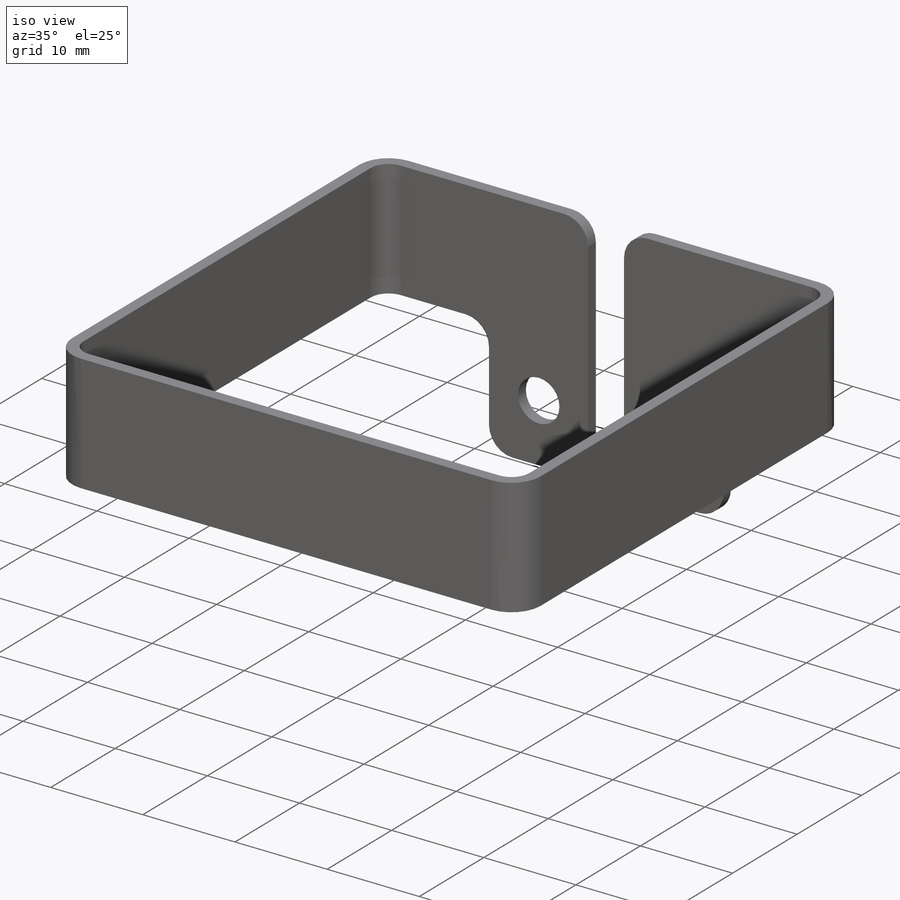
[diagram: iso view]
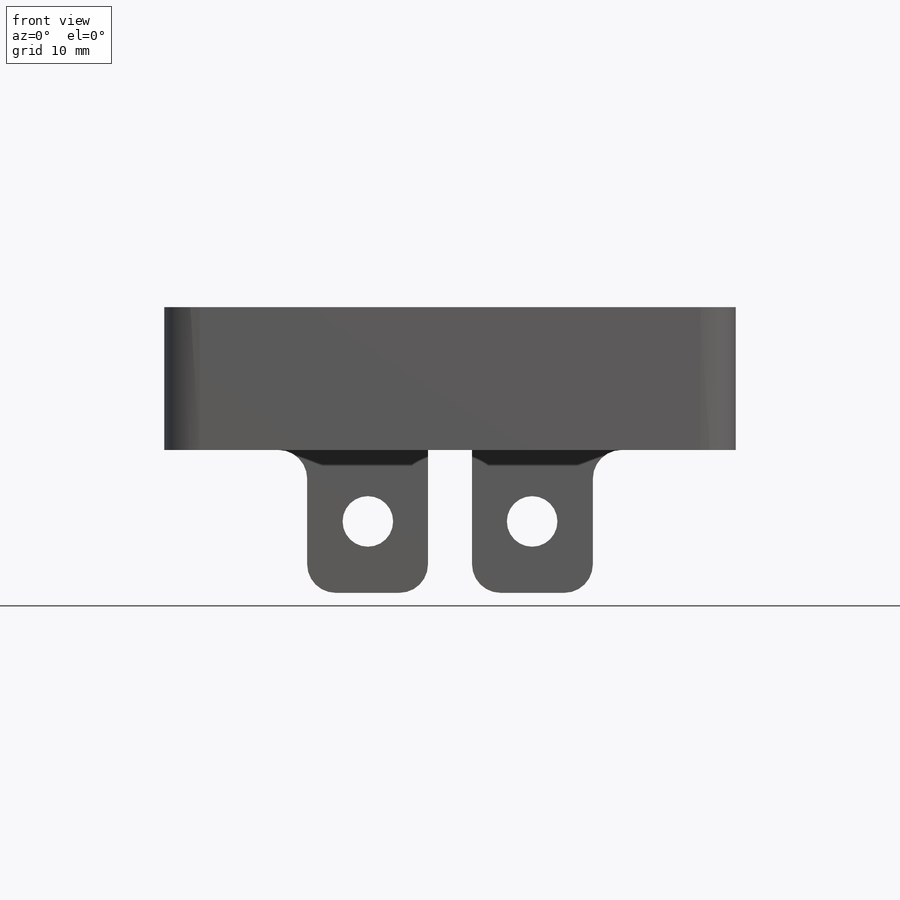
[diagram: front view]
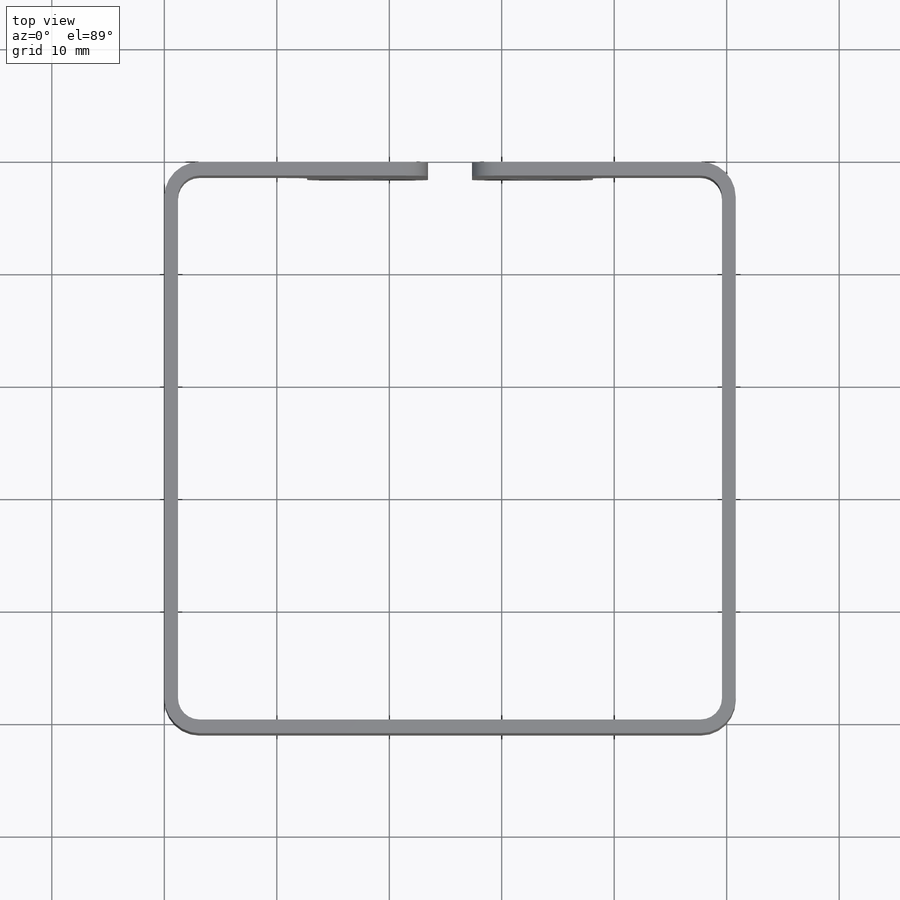
[diagram: top view]
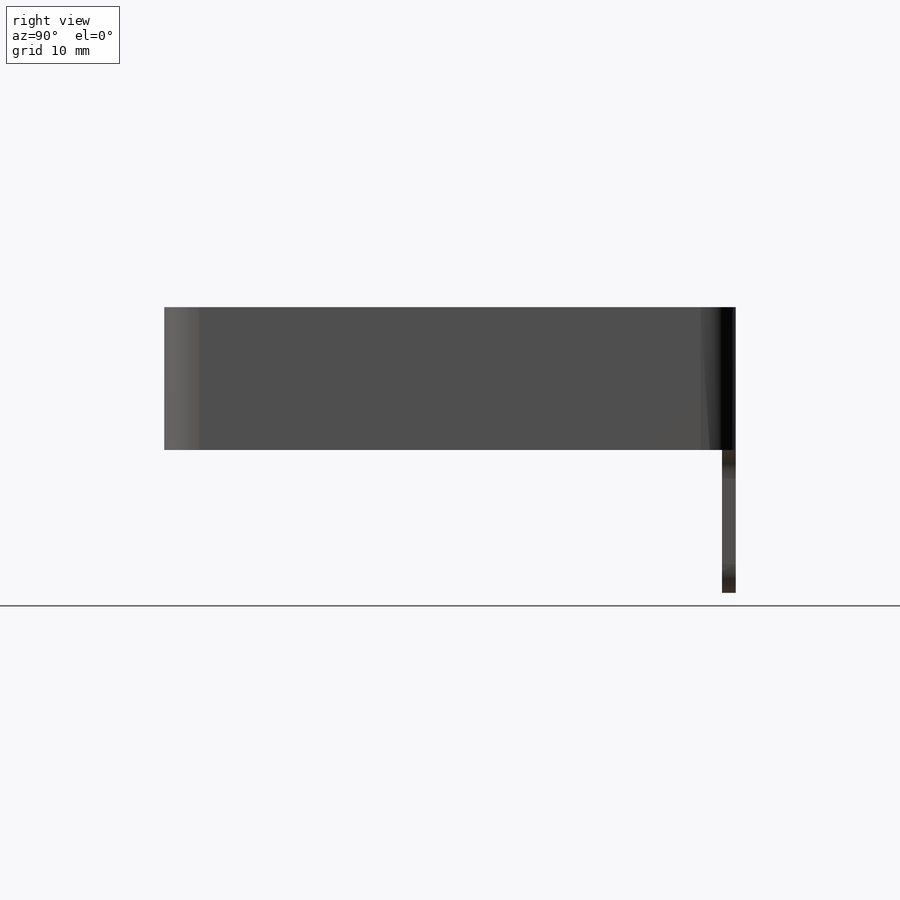
[diagram: right view]
SOLIDWORKS PART (.sldprt)
format: sldprt  version: not decoded by parser v0  size: 379,904 bytes
history: native  units: mm
features: sketch x22, fillet x6, hole x6, sheet_metal_op x5, material x1, extrude x1 + 17 further entries (+12 scaffold rows collapsed; 6 parser-record rows omitted)
feature tree (76):
  scaffold x12  (default folders/planes/origin — collapsed)
  material  "Material <not specified>"
  sketch  "Sketch1"  dims[c1.D1=50.8mm c2.D1=1.905mm c2.D2=0.64 c2.D3=0.0mm c2.D6=500.0mm]
  sheet_metal_op  "Base-Flange1"
  sketch  "Sketch10"
  sketch  "Sketch11"  dims[D1=1.905mm D4=90.0deg D5=1.0 D8=0.6096mm D9=0.6096mm]
  sheet_metal_op  "EdgeBend2"  Edge-Flange2=0
  sketch  "Sketch14"
  sheet_metal_op  "EdgeBend3"  Edge-Flange3=0
  sketch  "Sketch17"
  sheet_metal_op  "EdgeBend4"
  sketch  "Sketch18"  dims[D1=25.4mm D2=12.7mm]
  extrude  "Boss-Extrude1"  [1 undecoded]
  fillet  "Fillet1"  Radius=2.54mm
  hole  "#8 Clearance Hole1"  Diameter=4.4958mm Depth=1.2192mm
  sketch  "Sketch20"  dims[D1=14.605mm]
  sketch  "Sketch19"  dims[hole-wizard template sketch: 60 standard entries collapsed; hole parameters kept: c18.Thru Hole Depth=1.2192mm]
  sketch  "Bend-Lines1"
  sketch  "Bounding-Box1"
  sheet_metal_op  "Sheet-Metal(1)"
  "Flat-Pattern(1)"
  sketch  "Bend-Lines2"
  sketch  "Bounding-Box2"
  parser-record x6  (decoder bookkeeping rows leaked as tree rows — omitted from the tree; the rows remain in map.json)
  fillet  "Sheet-Metal(2)"  Radius=1.905mm
  hole  "Flat-Pattern(1)"  [1 undecoded]
  sketch  "Bend-Lines2"
  sketch  "Bounding-Box2"
  "Flatten-<EdgeBend2>1"
  fillet  "Sheet-Metal(3)"  Radius=1.905mm
  hole  "Flat-Pattern(1)"  [1 undecoded]
  sketch  "Bend-Lines2"
  sketch  "Bounding-Box2"
  "Flatten-<EdgeBend1>1"
  "Flatten-<EdgeBend2>1"
  "Flatten-<EdgeBend3>1"
  fillet  "Sheet-Metal(4)"  Radius=1.905mm
  hole  "Flat-Pattern(1)"  [1 undecoded]
  sketch  "Bend-Lines2"
  sketch  "Bounding-Box2"
  "Flatten-<EdgeBend1>1"
  "Flatten-<EdgeBend2>1"
  "Flatten-<EdgeBend3>1"
  "Flatten-<EdgeBend4>1"
  fillet  "Sheet-Metal(5)"  Radius=1.905mm
  hole  "Flat-Pattern(1)"  [1 undecoded]
  sketch  "Bend-Lines2"
  sketch  "Bounding-Box2"
  "Flatten-<EdgeBend1>1"
  "Flatten-<EdgeBend2>1"
  "Flatten-<EdgeBend3>1"
  "Flatten-<EdgeBend4>1"
  fillet  "Sheet-Metal(6)"  Radius=1.905mm
  hole  "Flat-Pattern(1)"  [1 undecoded]
  sketch  "Bend-Lines2"
  sketch  "Bounding-Box2"
  "Flatten-<EdgeBend1>1"
  "Flatten-<EdgeBend2>1"
  "Flatten-<EdgeBend3>1"
  "Flatten-<EdgeBend4>1"
decode coverage: 14 of 40 modeling features carry decoded parameters; 17 rows unclassified (native names shown)
note: ~ marks probable driven/reference dimensions
note: 6 parameter values undecoded
summary: no parameter record found for 6 features
note: suppression state not decoded; provenance and decode notes live in map.json
